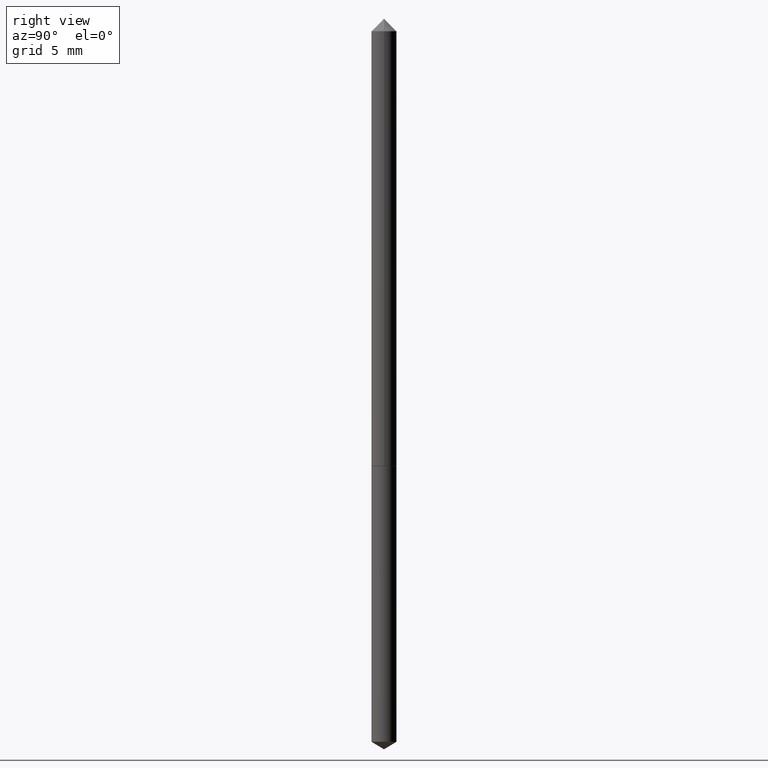
[diagram: clean part render]
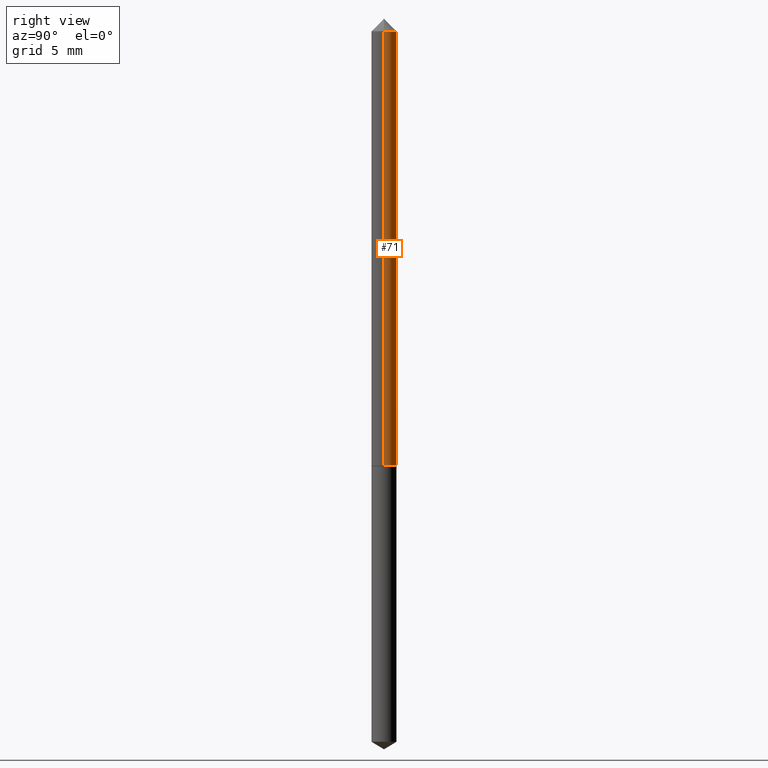
[diagram: same view with one face highlighted and labeled with its STEP entity id]
A machine part, right view. The second image highlights one B-rep face of the part: STEP entity #71.
In plain terms, the highlighted cylindrical surface (edge-blend (fillet) strip) has radius 0.6502 mm, axis along (-0, 0, 1).
Its self-contained STEP definition (entity closure, byte-faithful):
#4 = CARTESIAN_POINT ( 'NONE',  ( -0.02560000000000000817, -1.474896241959955932E-15, -0.03125000000000020123 ) ) ;
#16 = CARTESIAN_POINT ( 'NONE',  ( 0.02560000000000000817, -2.878726363876175249E-16, -0.03125000000000020123 ) ) ;
#22 = ORIENTED_EDGE ( 'NONE', *, *, #135, .T. ) ;
#26 = VERTEX_POINT ( 'NONE', #4 ) ;
#35 = CARTESIAN_POINT ( 'NONE',  ( -0.02560000000000011572, -3.022582632435652044E-15, -0.9177999999999998382 ) ) ;
#43 = CARTESIAN_POINT ( 'NONE',  ( 0.000000000000000000, 0.000000000000000000, 0.000000000000000000 ) ) ;
#45 = ORIENTED_EDGE ( 'NONE', *, *, #250, .T. ) ;
#47 = VERTEX_POINT ( 'NONE', #35 ) ;
#49 = CIRCLE ( 'NONE', #256, 0.02560000000000011572 ) ;
#71 = ADVANCED_FACE ( 'NONE', ( #350 ), #151, .T. ) ;
#94 = DIRECTION ( 'NONE',  ( 1.000000000000000000, -6.982962677686266711E-15, 4.876176775795935232E-29 ) ) ;
#95 = LINE ( 'NONE', #125, #238 ) ;
#102 = CARTESIAN_POINT ( 'NONE',  ( 7.642090019328601786E-31, -1.091087918388490144E-16, -0.03125000000000020123 ) ) ;
#108 = DIRECTION ( 'NONE',  ( -2.445468806185136597E-29, 3.491481338843145583E-15, 1.000000000000000000 ) ) ;
#111 = EDGE_LOOP ( 'NONE', ( #45, #22, #136, #225 ) ) ;
#125 = CARTESIAN_POINT ( 'NONE',  ( 0.02560000000000006368, -1.787638445487688680E-16, 1.248301254603762494E-30 ) ) ;
#127 = VECTOR ( 'NONE', #269, 39.37007874015748143 ) ;
#131 = CARTESIAN_POINT ( 'NONE',  ( 2.244451270316717701E-29, -3.204481572790238563E-15, -0.9177999999999998382 ) ) ;
#135 = EDGE_CURVE ( 'NONE', #47, #26, #184, .T. ) ;
#136 = ORIENTED_EDGE ( 'NONE', *, *, #336, .F. ) ;
#143 = AXIS2_PLACEMENT_3D ( 'NONE', #43, #351, #94 ) ;
#151 = CYLINDRICAL_SURFACE ( 'NONE', #143, 0.02560000000000006368 ) ;
#179 = CARTESIAN_POINT ( 'NONE',  ( 0.02560000000000011572, -3.383245417339008023E-15, -0.9177999999999998382 ) ) ;
#183 = VERTEX_POINT ( 'NONE', #179 ) ;
#184 = LINE ( 'NONE', #292, #127 ) ;
#205 = DIRECTION ( 'NONE',  ( -2.445468806185136597E-29, 3.491481338843145583E-15, 1.000000000000000000 ) ) ;
#225 = ORIENTED_EDGE ( 'NONE', *, *, #227, .F. ) ;
#227 = EDGE_CURVE ( 'NONE', #183, #233, #95, .T. ) ;
#233 = VERTEX_POINT ( 'NONE', #16 ) ;
#238 = VECTOR ( 'NONE', #288, 39.37007874015748143 ) ;
#250 = EDGE_CURVE ( 'NONE', #183, #47, #49, .T. ) ;
#256 = AXIS2_PLACEMENT_3D ( 'NONE', #131, #205, #318 ) ;
#269 = DIRECTION ( 'NONE',  ( -2.445468806185136877E-29, 3.491481338843145188E-15, 1.000000000000000000 ) ) ;
#280 = DIRECTION ( 'NONE',  ( 1.000000000000000000, -6.982962677686267499E-15, 0.000000000000000000 ) ) ;
#288 = DIRECTION ( 'NONE',  ( -2.445468806185136877E-29, 3.491481338843145188E-15, 1.000000000000000000 ) ) ;
#292 = CARTESIAN_POINT ( 'NONE',  ( -0.02560000000000006368, 1.818989403545861000E-16, -1.259247383105259117E-30 ) ) ;
#306 = AXIS2_PLACEMENT_3D ( 'NONE', #102, #108, #280 ) ;
#318 = DIRECTION ( 'NONE',  ( 1.000000000000000000, -6.982962677686270655E-15, 0.000000000000000000 ) ) ;
#336 = EDGE_CURVE ( 'NONE', #233, #26, #358, .T. ) ;
#350 = FACE_OUTER_BOUND ( 'NONE', #111, .T. ) ;
#351 = DIRECTION ( 'NONE',  ( -2.445468806185136597E-29, 3.491481338843145583E-15, 1.000000000000000000 ) ) ;
#358 = CIRCLE ( 'NONE', #306, 0.02560000000000000817 ) ;